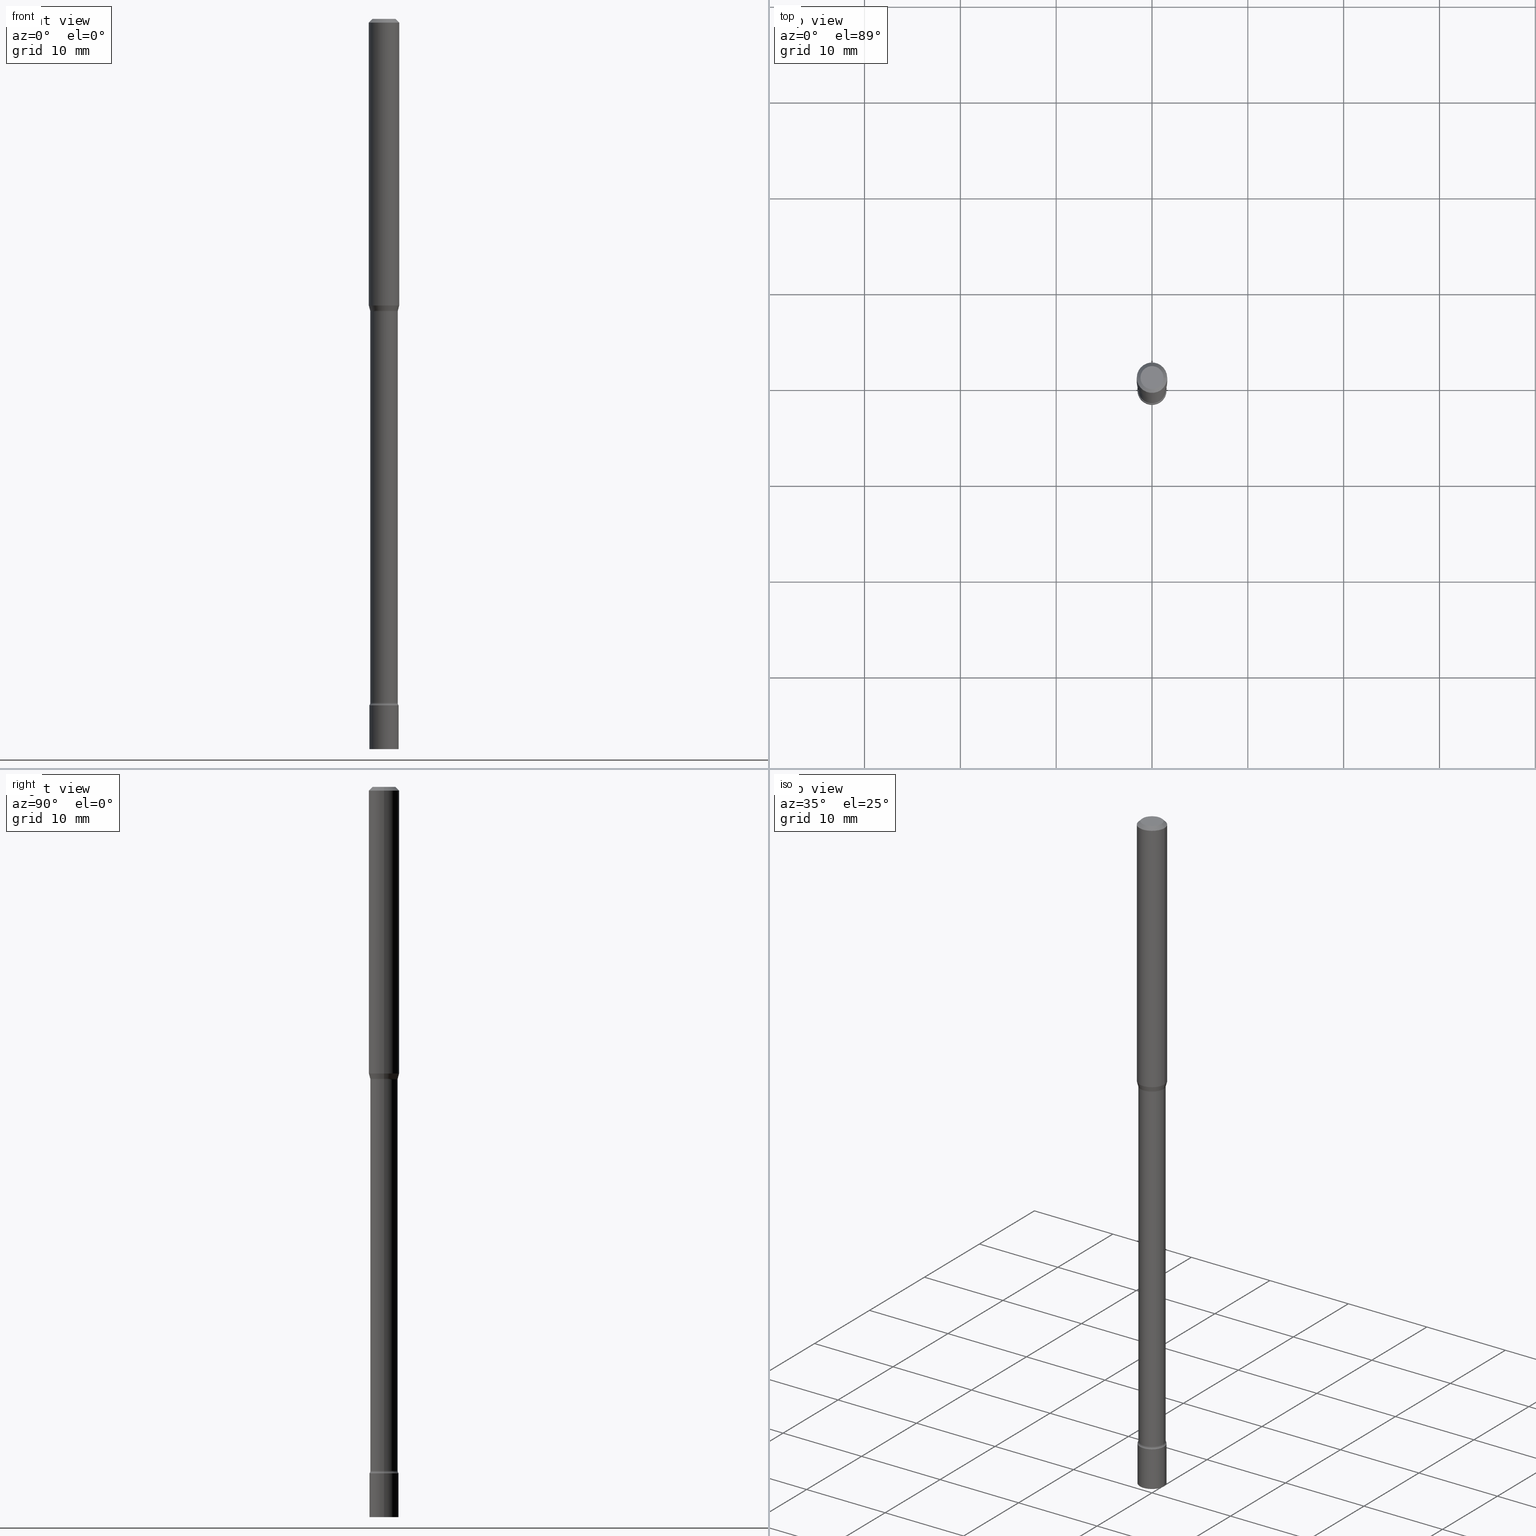
[diagram: canonical four-view strip — front | top / right | iso, engineering-drawing reading convention]
A machine part, canonical four-view strip (front | top / right | iso — engineering-drawing reading convention). The complete STEP part file that produces these views, byte-faithful:
ISO-10303-21;
HEADER;
FILE_DESCRIPTION (( 'STEP AP203' ),
    '1' );
FILE_NAME ('09778.STEP',
    '2024-03-09T02:01:24',
    ( '' ),
    ( '' ),
    'SwSTEP 2.0',
    'SolidWorks 2023',
    '' );
FILE_SCHEMA (( 'CONFIG_CONTROL_DESIGN' ));
ENDSEC;

DATA;
#1 = ORIENTED_EDGE ( 'NONE', *, *, #495, .F. ) ;
#2 = DIRECTION ( 'NONE',  ( 1.000000000000000000, -6.982962677686267499E-15, 4.876176775795935793E-29 ) ) ;
#3 = DIRECTION ( 'NONE',  ( -2.445468806185136597E-29, 3.491481338843145583E-15, 1.000000000000000000 ) ) ;
#4 = CARTESIAN_POINT ( 'NONE',  ( -0.05999999999999999084, -9.419651734081610913E-15, -2.819999999999999840 ) ) ;
#5 = FACE_OUTER_BOUND ( 'NONE', #198, .T. ) ;
#6 = DIRECTION ( 'NONE',  ( 1.000000000000000000, -6.982962677686264344E-15, 4.883557194083112901E-29 ) ) ;
#7 = APPROVAL ( #304, 'UNSPECIFIED' ) ;
#8 = AXIS2_PLACEMENT_3D ( 'NONE', #472, #271, #428 ) ;
#9 = CC_DESIGN_SECURITY_CLASSIFICATION ( #457, ( #184 ) ) ;
#10 = DIRECTION ( 'NONE',  ( -6.982962677686266711E-15, -1.000000000000000000, 3.491481338843145583E-15 ) ) ;
#11 = DIRECTION ( 'NONE',  ( 1.000000000000000000, -6.982962677686262766E-15, 0.000000000000000000 ) ) ;
#12 = EDGE_LOOP ( 'NONE', ( #476, #479, #59, #359 ) ) ;
#13 = EDGE_CURVE ( 'NONE', #282, #393, #455, .T. ) ;
#14 = LINE ( 'NONE', #377, #93 ) ;
#15 = PERSON_AND_ORGANIZATION ( #330, #85 ) ;
#16 = EDGE_LOOP ( 'NONE', ( #324, #125, #446, #500 ) ) ;
#17 = CARTESIAN_POINT ( 'NONE',  ( 4.189777606612493075E-16, 0.05999999999998952699, -3.000000000000000444 ) ) ;
#18 = AXIS2_PLACEMENT_3D ( 'NONE', #200, #483, #110 ) ;
#19 = ORIENTED_EDGE ( 'NONE', *, *, #138, .T. ) ;
#20 = FACE_OUTER_BOUND ( 'NONE', #435, .T. ) ;
#21 = TOROIDAL_SURFACE ( 'NONE', #434, 0.07139999999999999125, 0.01499999999999998904 ) ;
#22 = CARTESIAN_POINT ( 'NONE',  ( 2.878890223040817361E-29, -4.110292253535303386E-15, -1.177234490073830075 ) ) ;
#23 = EDGE_CURVE ( 'NONE', #214, #250, #239, .T. ) ;
#24 = DIRECTION ( 'NONE',  ( 0.7071067811865475727, -7.319954787623256045E-15, -0.7071067811865474617 ) ) ;
#25 = EDGE_CURVE ( 'NONE', #317, #389, #207, .T. ) ;
#26 = AXIS2_PLACEMENT_3D ( 'NONE', #395, #206, #474 ) ;
#27 = ORIENTED_EDGE ( 'NONE', *, *, #181, .F. ) ;
#28 = DIRECTION ( 'NONE',  ( -2.445468806185136597E-29, 3.491481338843145583E-15, 1.000000000000000000 ) ) ;
#29 = EDGE_CURVE ( 'NONE', #197, #505, #503, .T. ) ;
#30 = ORIENTED_EDGE ( 'NONE', *, *, #288, .T. ) ;
#31 = CARTESIAN_POINT ( 'NONE',  ( 0.04749999999999999362, -4.035134999187579609E-16, -2.891391092786643933E-17 ) ) ;
#32 = CYLINDRICAL_SURFACE ( 'NONE', #92, 0.05999999999999999778 ) ;
#33 = DIRECTION ( 'NONE',  ( -1.000000000000000000, 6.982962677686265922E-15, -4.876176775795935793E-29 ) ) ;
#34 = AXIS2_PLACEMENT_3D ( 'NONE', #309, #313, #153 ) ;
#35 = DIRECTION ( 'NONE',  ( -2.445468806185136597E-29, 3.491481338843145583E-15, 1.000000000000000000 ) ) ;
#36 = DIRECTION ( 'NONE',  ( -2.445468806185136597E-29, 3.491481338843145583E-15, 1.000000000000000000 ) ) ;
#37 = FACE_OUTER_BOUND ( 'NONE', #16, .T. ) ;
#38 = DIRECTION ( 'NONE',  ( -2.445468806185136597E-29, 3.491481338843145583E-15, 1.000000000000000000 ) ) ;
#39 = ORIENTED_EDGE ( 'NONE', *, *, #203, .T. ) ;
#40 = AXIS2_PLACEMENT_3D ( 'NONE', #177, #136, #454 ) ;
#41 = CARTESIAN_POINT ( 'NONE',  ( 0.05999999999999999778, -1.026495513619884646E-14, -2.819999999999999840 ) ) ;
#42 = EDGE_CURVE ( 'NONE', #393, #112, #366, .T. ) ;
#43 = ORIENTED_EDGE ( 'NONE', *, *, #350, .F. ) ;
#44 = CALENDAR_DATE ( 2024, 8, 3 ) ;
#45 = EDGE_CURVE ( 'NONE', #185, #317, #142, .T. ) ;
#46 = DIRECTION ( 'NONE',  ( -2.445468806185136877E-29, 3.491481338843145188E-15, 1.000000000000000000 ) ) ;
#47 = APPROVAL_ROLE ( '' ) ;
#48 = VECTOR ( 'NONE', #450, 39.37007874015748854 ) ;
#49 = APPROVAL_PERSON_ORGANIZATION ( #65, #379, #347 ) ;
#50 = AXIS2_PLACEMENT_3D ( 'NONE', #174, #238, #269 ) ;
#51 = ADVANCED_FACE ( 'NONE', ( #444 ), #21, .F. ) ;
#52 = ORIENTED_EDGE ( 'NONE', *, *, #504, .F. ) ;
#53 = FACE_OUTER_BOUND ( 'NONE', #493, .T. ) ;
#54 = DATE_AND_TIME ( #469, #468 ) ;
#55 = PRODUCT ( '09778', '09778', '', ( #105 ) ) ;
#56 = DIRECTION ( 'NONE',  ( -2.445468806185136877E-29, 3.491481338843145188E-15, 1.000000000000000000 ) ) ;
#57 = DATE_AND_TIME ( #98, #336 ) ;
#58 = CIRCLE ( 'NONE', #297, 0.01499999999999998557 ) ;
#59 = ORIENTED_EDGE ( 'NONE', *, *, #25, .T. ) ;
#60 = CARTESIAN_POINT ( 'NONE',  ( 3.668203209277712094E-31, -5.237222008264728876E-17, -0.01500000000000003067 ) ) ;
#61 = EDGE_CURVE ( 'NONE', #393, #282, #514, .T. ) ;
#62 = FACE_OUTER_BOUND ( 'NONE', #308, .T. ) ;
#63 = DIRECTION ( 'NONE',  ( 0.000000000000000000, 0.000000000000000000, 1.000000000000000000 ) ) ;
#64 = CARTESIAN_POINT ( 'NONE',  ( 0.05639999999999999181, -4.590511635211357354E-15, -1.201974787463811145 ) ) ;
#65 = PERSON_AND_ORGANIZATION ( #330, #85 ) ;
#66 = ORIENTED_EDGE ( 'NONE', *, *, #504, .T. ) ;
#67 = DIRECTION ( 'NONE',  ( -2.445468806185136597E-29, 3.491481338843145583E-15, 1.000000000000000000 ) ) ;
#68 = TOROIDAL_SURFACE ( 'NONE', #18, 0.07139999999999999125, 0.01499999999999998904 ) ;
#69 = LOCAL_TIME ( 21, 1, 24.00000000000000000, #421 ) ;
#70 = EDGE_LOOP ( 'NONE', ( #116, #290, #267, #316 ) ) ;
#71 = EDGE_CURVE ( 'NONE', #282, #243, #413, .T. ) ;
#72 = CARTESIAN_POINT ( 'NONE',  ( 2.939391848563759513E-29, -4.196672540189852739E-15, -1.201974787463811145 ) ) ;
#73 = DIRECTION ( 'NONE',  ( 2.438088387897960049E-29, -3.491481338843145188E-15, -1.000000000000000000 ) ) ;
#74 = DIRECTION ( 'NONE',  ( 1.000000000000000000, -6.982962677686261977E-15, 0.000000000000000000 ) ) ;
#75 = CONICAL_SURFACE ( 'NONE', #411, 0.05691111260566398405, 0.2617993877991494078 ) ;
#76 = EDGE_CURVE ( 'NONE', #314, #257, #398, .T. ) ;
#77 = LOCAL_TIME ( 21, 1, 24.00000000000000000, #88 ) ;
#78 = CC_DESIGN_PERSON_AND_ORGANIZATION_ASSIGNMENT ( #273, #427, ( #184 ) ) ;
#79 = DIRECTION ( 'NONE',  ( -2.445468806185136597E-29, 3.491481338843145583E-15, 1.000000000000000000 ) ) ;
#80 = ORIENTED_EDGE ( 'NONE', *, *, #459, .F. ) ;
#81 = DIRECTION ( 'NONE',  ( -2.445468806185136877E-29, 3.491481338843145188E-15, 1.000000000000000000 ) ) ;
#82 = APPLICATION_PROTOCOL_DEFINITION ( 'international standard', 'config_control_design', 1994, #294 ) ;
#83 = CARTESIAN_POINT ( 'NONE',  ( -0.06250000000000000000, -1.637243026958912814E-15, -0.01500000000000003067 ) ) ;
#84 = ORIENTED_EDGE ( 'NONE', *, *, #364, .T. ) ;
#85 = ORGANIZATION ( 'UNSPECIFIED', 'UNSPECIFIED', '' ) ;
#86 = CARTESIAN_POINT ( 'NONE',  ( 6.872381534443541527E-29, -9.811939461354673700E-15, -2.810251153914437250 ) ) ;
#87 =( LENGTH_UNIT ( ) NAMED_UNIT ( * ) SI_UNIT ( $, .METRE. ) );
#88 = COORDINATED_UNIVERSAL_TIME_OFFSET ( 5, 0, .BEHIND. ) ;
#89 = DIRECTION ( 'NONE',  ( -1.000000000000000000, 7.105427357600997914E-15, 0.000000000000000000 ) ) ;
#90 = CALENDAR_DATE ( 2024, 8, 3 ) ;
#91 = CC_DESIGN_DATE_AND_TIME_ASSIGNMENT ( #462, #351, ( #137 ) ) ;
#92 = AXIS2_PLACEMENT_3D ( 'NONE', #491, #166, #320 ) ;
#93 = VECTOR ( 'NONE', #176, 39.37007874015748143 ) ;
#94 = ORIENTED_EDGE ( 'NONE', *, *, #291, .T. ) ;
#95 = CARTESIAN_POINT ( 'NONE',  ( 0.000000000000000000, 0.000000000000000000, 0.000000000000000000 ) ) ;
#96 = VERTEX_POINT ( 'NONE', #484 ) ;
#97 = PLANE ( 'NONE',  #163 ) ;
#98 = CALENDAR_DATE ( 2024, 8, 3 ) ;
#99 = ORIENTED_EDGE ( 'NONE', *, *, #25, .F. ) ;
#100 = LINE ( 'NONE', #390, #272 ) ;
#101 = DIRECTION ( 'NONE',  ( 1.000000000000000000, 0.000000000000000000, 0.000000000000000000 ) ) ;
#102 = CIRCLE ( 'NONE', #256, 0.05999999999999999778 ) ;
#103 = ORIENTED_EDGE ( 'NONE', *, *, #291, .F. ) ;
#104 = CARTESIAN_POINT ( 'NONE',  ( 3.668203209277712094E-31, -5.237222008264728876E-17, -0.01500000000000003067 ) ) ;
#105 = MECHANICAL_CONTEXT ( 'NONE', #294, 'mechanical' ) ;
#106 = DIRECTION ( 'NONE',  ( 1.000000000000000000, -6.982962677686260400E-15, 0.000000000000000000 ) ) ;
#107 = DIRECTION ( 'NONE',  ( -2.445468806185136597E-29, 3.491481338843145583E-15, 1.000000000000000000 ) ) ;
#108 = ORIENTED_EDGE ( 'NONE', *, *, #208, .F. ) ;
#109 = DIRECTION ( 'NONE',  ( -2.445468806185136597E-29, 3.491481338843145583E-15, 1.000000000000000000 ) ) ;
#110 = DIRECTION ( 'NONE',  ( 1.000000000000000000, -6.982962677686264344E-15, 4.883557194083112901E-29 ) ) ;
#111 = CIRCLE ( 'NONE', #368, 0.06250000000000000000 ) ;
#112 = VERTEX_POINT ( 'NONE', #283 ) ;
#113 = AXIS2_PLACEMENT_3D ( 'NONE', #367, #79, #406 ) ;
#114 = EDGE_LOOP ( 'NONE', ( #382, #342, #30, #52 ) ) ;
#115 = PLANE ( 'NONE',  #211 ) ;
#116 = ORIENTED_EDGE ( 'NONE', *, *, #13, .T. ) ;
#117 = DIRECTION ( 'NONE',  ( 1.000000000000000000, -6.982962677686274599E-15, 0.000000000000000000 ) ) ;
#118 = DIRECTION ( 'NONE',  ( -2.445468806185136597E-29, 3.491481338843145583E-15, 1.000000000000000000 ) ) ;
#119 = ADVANCED_FACE ( 'NONE', ( #124 ), #32, .T. ) ;
#120 = DIRECTION ( 'NONE',  ( -2.445468806185136597E-29, 3.491481338843145583E-15, 1.000000000000000000 ) ) ;
#121 = VECTOR ( 'NONE', #438, 39.37007874015748143 ) ;
#122 = EDGE_CURVE ( 'NONE', #243, #463, #312, .T. ) ;
#123 = CIRCLE ( 'NONE', #195, 0.04749999999999999362 ) ;
#124 = FACE_OUTER_BOUND ( 'NONE', #440, .T. ) ;
#125 = ORIENTED_EDGE ( 'NONE', *, *, #13, .F. ) ;
#126 = ADVANCED_FACE ( 'NONE', ( #5 ), #218, .T. ) ;
#127 = DIRECTION ( 'NONE',  ( 1.000000000000000000, -6.982962677686268288E-15, 0.000000000000000000 ) ) ;
#128 = FACE_OUTER_BOUND ( 'NONE', #280, .T. ) ;
#129 = ORIENTED_EDGE ( 'NONE', *, *, #222, .F. ) ;
#130 = ORIENTED_EDGE ( 'NONE', *, *, #404, .T. ) ;
#131 = AXIS2_PLACEMENT_3D ( 'NONE', #187, #383, #234 ) ;
#132 = CC_DESIGN_APPROVAL ( #429, ( #457 ) ) ;
#133 = CIRCLE ( 'NONE', #50, 0.06250000000000000000 ) ;
#134 = DIRECTION ( 'NONE',  ( 1.000000000000000000, -6.982962677686260400E-15, 4.883557194083111219E-29 ) ) ;
#135 = DATE_TIME_ROLE ( 'classification_date' ) ;
#136 = DIRECTION ( 'NONE',  ( -2.445468806185136597E-29, 3.491481338843145583E-15, 1.000000000000000000 ) ) ;
#137 = PRODUCT_DEFINITION ( 'UNKNOWN', '', #184, #319 ) ;
#138 = EDGE_CURVE ( 'NONE', #230, #389, #133, .T. ) ;
#139 = AXIS2_PLACEMENT_3D ( 'NONE', #104, #431, #311 ) ;
#140 = PERSON_AND_ORGANIZATION_ROLE ( 'creator' ) ;
#141 = ORIENTED_EDGE ( 'NONE', *, *, #459, .T. ) ;
#142 = CIRCLE ( 'NONE', #346, 0.06250000000000000000 ) ;
#143 = CARTESIAN_POINT ( 'NONE',  ( 0.06250000000000000000, -4.546727420890695056E-15, -1.177234490073830075 ) ) ;
#144 = ORIENTED_EDGE ( 'NONE', *, *, #497, .T. ) ;
#145 = CARTESIAN_POINT ( 'NONE',  ( -0.05640000000000020691, -9.415422546233793245E-15, -2.810251153914437250 ) ) ;
#146 = DIRECTION ( 'NONE',  ( -2.445468806185136597E-29, 3.491481338843145583E-15, 1.000000000000000000 ) ) ;
#147 = CALENDAR_DATE ( 2024, 8, 3 ) ;
#148 = AXIS2_PLACEMENT_3D ( 'NONE', #433, #67, #2 ) ;
#149 = CARTESIAN_POINT ( 'NONE',  ( 0.000000000000000000, 0.000000000000000000, 0.000000000000000000 ) ) ;
#150 = AXIS2_PLACEMENT_3D ( 'NONE', #246, #204, #365 ) ;
#151 = CARTESIAN_POINT ( 'NONE',  ( 2.929897840045086771E-29, -4.183117612198162941E-15, -1.198092501787273223 ) ) ;
#152 = ORIENTED_EDGE ( 'NONE', *, *, #61, .F. ) ;
#153 = DIRECTION ( 'NONE',  ( 1.000000000000000000, -6.982962677686268288E-15, 0.000000000000000000 ) ) ;
#154 = ORIENTED_EDGE ( 'NONE', *, *, #181, .T. ) ;
#155 = DIRECTION ( 'NONE',  ( -2.445468806185136597E-29, 3.491481338843145583E-15, 1.000000000000000000 ) ) ;
#156 = AXIS2_PLACEMENT_3D ( 'NONE', #72, #155, #74 ) ;
#157 = EDGE_CURVE ( 'NONE', #505, #197, #123, .T. ) ;
#158 = DIRECTION ( 'NONE',  ( -6.982962677686266711E-15, -1.000000000000000000, 3.491481338843145583E-15 ) ) ;
#159 = CARTESIAN_POINT ( 'NONE',  ( -0.06250000000000000000, 4.440892098500626162E-16, -3.074334431409316114E-30 ) ) ;
#160 = ORIENTED_EDGE ( 'NONE', *, *, #188, .F. ) ;
#161 = MANIFOLD_SOLID_BREP ( 'Body-Move/Copy2[1]', #337 ) ;
#162 = CARTESIAN_POINT ( 'NONE',  ( 2.878890223040817361E-29, -4.110292253535303386E-15, -1.177234490073830075 ) ) ;
#163 = AXIS2_PLACEMENT_3D ( 'NONE', #315, #354, #343 ) ;
#164 = ORIENTED_EDGE ( 'NONE', *, *, #310, .T. ) ;
#165 = AXIS2_PLACEMENT_3D ( 'NONE', #216, #38, #134 ) ;
#166 = DIRECTION ( 'NONE',  ( -2.445468806185136597E-29, 3.491481338843145583E-15, 1.000000000000000000 ) ) ;
#167 = ADVANCED_FACE ( 'NONE', ( #62 ), #202, .T. ) ;
#168 = CARTESIAN_POINT ( 'NONE',  ( 0.06250000000000000000, -4.364351673553916694E-16, 3.047610484872459871E-30 ) ) ;
#169 = ORIENTED_EDGE ( 'NONE', *, *, #29, .F. ) ;
#170 = PRODUCT_DEFINITION_SHAPE ( 'NONE', 'NONE',  #137 ) ;
#171 = COORDINATED_UNIVERSAL_TIME_OFFSET ( 5, 0, .BEHIND. ) ;
#172 = APPROVAL_DATE_TIME ( #303, #429 ) ;
#173 = VECTOR ( 'NONE', #412, 39.37007874015748143 ) ;
#174 = CARTESIAN_POINT ( 'NONE',  ( 3.668203209277712094E-31, -5.237222008264728876E-17, -0.01500000000000003067 ) ) ;
#175 = ADVANCED_FACE ( 'NONE', ( #37 ), #486, .F. ) ;
#176 = DIRECTION ( 'NONE',  ( -0.7071067811865475727, 2.468850131082257455E-15, -0.7071067811865474617 ) ) ;
#177 = CARTESIAN_POINT ( 'NONE',  ( 0.000000000000000000, 0.000000000000000000, 0.000000000000000000 ) ) ;
#178 = PERSON_AND_ORGANIZATION ( #330, #85 ) ;
#179 = EDGE_LOOP ( 'NONE', ( #293, #103 ) ) ;
#180 = CARTESIAN_POINT ( 'NONE',  ( 0.05640000000000009589, -3.938390950215061442E-16, 2.750163701548912549E-30 ) ) ;
#181 = EDGE_CURVE ( 'NONE', #385, #112, #58, .T. ) ;
#182 = APPLICATION_CONTEXT ( 'configuration controlled 3d designs of mechanical parts and assemblies' ) ;
#183 = CIRCLE ( 'NONE', #494, 0.05999999999999999778 ) ;
#184 = PRODUCT_DEFINITION_FORMATION_WITH_SPECIFIED_SOURCE ( 'ANY', '', #55, .NOT_KNOWN. ) ;
#185 = VERTEX_POINT ( 'NONE', #492 ) ;
#186 = AXIS2_PLACEMENT_3D ( 'NONE', #285, #158, #253 ) ;
#187 = CARTESIAN_POINT ( 'NONE',  ( 6.896222033442085337E-29, -9.845977375537671403E-15, -2.819999999999999840 ) ) ;
#188 = EDGE_CURVE ( 'NONE', #314, #385, #210, .T. ) ;
#189 = PERSON_AND_ORGANIZATION_ROLE ( 'design_owner' ) ;
#190 = FACE_OUTER_BOUND ( 'NONE', #358, .T. ) ;
#191 = DIRECTION ( 'NONE',  ( -1.000000000000000000, 6.982962677686265922E-15, -4.876176775795935793E-29 ) ) ;
#192 = CONICAL_SURFACE ( 'NONE', #139, 0.06250000000000000000, 0.7853981633974483900 ) ;
#193 = CC_DESIGN_PERSON_AND_ORGANIZATION_ASSIGNMENT ( #381, #140, ( #137 ) ) ;
#194 = DIRECTION ( 'NONE',  ( 2.438088387897960049E-29, -3.491481338843145188E-15, -1.000000000000000000 ) ) ;
#195 = AXIS2_PLACEMENT_3D ( 'NONE', #430, #107, #424 ) ;
#196 = DIRECTION ( 'NONE',  ( -2.445468806185136597E-29, 3.491481338843145583E-15, 1.000000000000000000 ) ) ;
#197 = VERTEX_POINT ( 'NONE', #369 ) ;
#198 = EDGE_LOOP ( 'NONE', ( #425, #144, #289, #99 ) ) ;
#199 = CYLINDRICAL_SURFACE ( 'NONE', #148, 0.05640000000000009589 ) ;
#200 = CARTESIAN_POINT ( 'NONE',  ( 2.939391848563759513E-29, -4.196672540189852739E-15, -1.201974787463811145 ) ) ;
#201 = TOROIDAL_SURFACE ( 'NONE', #26, 0.07140000000000019942, 0.01499999999999998383 ) ;
#202 = CONICAL_SURFACE ( 'NONE', #264, 0.05691111260566398405, 0.2617993877991494078 ) ;
#203 = EDGE_CURVE ( 'NONE', #197, #230, #14, .T. ) ;
#204 = DIRECTION ( 'NONE',  ( -2.445468806185136597E-29, 3.491481338843145583E-15, 1.000000000000000000 ) ) ;
#205 = CARTESIAN_POINT ( 'NONE',  ( 7.070806723891919892E-46, -1.009523804376275404E-31, -2.891391092786900929E-17 ) ) ;
#206 = DIRECTION ( 'NONE',  ( -2.445468806185136597E-29, 3.491481338843145583E-15, 1.000000000000000000 ) ) ;
#207 = LINE ( 'NONE', #168, #173 ) ;
#208 = EDGE_CURVE ( 'NONE', #371, #250, #496, .T. ) ;
#209 = CARTESIAN_POINT ( 'NONE',  ( -0.07139999999999999125, -3.689345026857141071E-15, -1.201974787463811145 ) ) ;
#210 = CIRCLE ( 'NONE', #452, 0.05691111260566398405 ) ;
#211 = AXIS2_PLACEMENT_3D ( 'NONE', #407, #73, #33 ) ;
#212 = ORIENTED_EDGE ( 'NONE', *, *, #203, .F. ) ;
#213 = FACE_OUTER_BOUND ( 'NONE', #179, .T. ) ;
#214 = VERTEX_POINT ( 'NONE', #489 ) ;
#215 = DIRECTION ( 'NONE',  ( -2.445468806185136597E-29, 3.491481338843145583E-15, 1.000000000000000000 ) ) ;
#216 = CARTESIAN_POINT ( 'NONE',  ( 6.872381534443541527E-29, -9.811939461354673700E-15, -2.810251153914437250 ) ) ;
#217 = ADVANCED_FACE ( 'NONE', ( #128 ), #292, .T. ) ;
#218 = CYLINDRICAL_SURFACE ( 'NONE', #287, 0.06250000000000000000 ) ;
#219 = DIRECTION ( 'NONE',  ( -2.445468806185136597E-29, 3.491481338843145583E-15, 1.000000000000000000 ) ) ;
#220 = AXIS2_PLACEMENT_3D ( 'NONE', #445, #326, #485 ) ;
#221 = AXIS2_PLACEMENT_3D ( 'NONE', #448, #329, #127 ) ;
#222 = EDGE_CURVE ( 'NONE', #385, #185, #262, .T. ) ;
#223 = ORIENTED_EDGE ( 'NONE', *, *, #76, .F. ) ;
#224 = DIRECTION ( 'NONE',  ( -2.445468806185136597E-29, 3.491481338843145583E-15, 1.000000000000000000 ) ) ;
#225 = CARTESIAN_POINT ( 'NONE',  ( 0.000000000000000000, 0.000000000000000000, 0.000000000000000000 ) ) ;
#226 = ORIENTED_EDGE ( 'NONE', *, *, #45, .F. ) ;
#227 = FACE_OUTER_BOUND ( 'NONE', #12, .T. ) ;
#228 = AXIS2_PLACEMENT_3D ( 'NONE', #441, #196, #281 ) ;
#229 = APPROVAL_DATE_TIME ( #57, #7 ) ;
#230 = VERTEX_POINT ( 'NONE', #83 ) ;
#231 = DIRECTION ( 'NONE',  ( -2.445468806185136597E-29, 3.491481338843145583E-15, 1.000000000000000000 ) ) ;
#232 = DIRECTION ( 'NONE',  ( -2.445468806185136597E-29, 3.491481338843145583E-15, 1.000000000000000000 ) ) ;
#233 = SECURITY_CLASSIFICATION_LEVEL ( 'unclassified' ) ;
#234 = DIRECTION ( 'NONE',  ( 1.000000000000000000, -6.982962677686265922E-15, 4.876176775795935793E-29 ) ) ;
#235 = CC_DESIGN_PERSON_AND_ORGANIZATION_ASSIGNMENT ( #266, #189, ( #55 ) ) ;
#236 = APPROVAL_STATUS ( 'not_yet_approved' ) ;
#237 = LINE ( 'NONE', #399, #378 ) ;
#238 = DIRECTION ( 'NONE',  ( -2.445468806185136597E-29, 3.491481338843145583E-15, 1.000000000000000000 ) ) ;
#239 = CIRCLE ( 'NONE', #221, 0.05999999999999999778 ) ;
#240 = VECTOR ( 'NONE', #481, 39.37007874015748143 ) ;
#241 = LINE ( 'NONE', #357, #121 ) ;
#242 = LOCAL_TIME ( 21, 1, 24.00000000000000000, #171 ) ;
#243 = VERTEX_POINT ( 'NONE', #255 ) ;
#244 = FACE_OUTER_BOUND ( 'NONE', #70, .T. ) ;
#245 = CARTESIAN_POINT ( 'NONE',  ( 6.896222033442085337E-29, -9.845977375537671403E-15, -2.819999999999999840 ) ) ;
#246 = CARTESIAN_POINT ( 'NONE',  ( 6.896222033442085337E-29, -9.845977375537671403E-15, -2.819999999999999840 ) ) ;
#247 = FACE_OUTER_BOUND ( 'NONE', #515, .T. ) ;
#248 = CONICAL_SURFACE ( 'NONE', #301, 0.06250000000000000000, 0.7853981633974483900 ) ;
#249 = AXIS2_PLACEMENT_3D ( 'NONE', #325, #10, #117 ) ;
#250 = VERTEX_POINT ( 'NONE', #41 ) ;
#251 = DIRECTION ( 'NONE',  ( 1.000000000000000000, -6.982962677686268288E-15, 0.000000000000000000 ) ) ;
#252 = ORIENTED_EDGE ( 'NONE', *, *, #122, .F. ) ;
#253 = DIRECTION ( 'NONE',  ( 1.000000000000000000, -6.982962677686279332E-15, 0.000000000000000000 ) ) ;
#254 = ADVANCED_FACE ( 'NONE', ( #213 ), #374, .T. ) ;
#255 = CARTESIAN_POINT ( 'NONE',  ( 0.05999999999999999084, -1.026495513619884646E-14, -2.819999999999999840 ) ) ;
#256 = AXIS2_PLACEMENT_3D ( 'NONE', #245, #118, #519 ) ;
#257 = VERTEX_POINT ( 'NONE', #64 ) ;
#258 = VECTOR ( 'NONE', #81, 39.37007874015748143 ) ;
#259 = ADVANCED_FACE ( 'NONE', ( #53 ), #97, .F. ) ;
#260 = DATE_AND_TIME ( #44, #77 ) ;
#261 = CARTESIAN_POINT ( 'NONE',  ( 2.929897840045086771E-29, -4.183117612198162941E-15, -1.198092501787273223 ) ) ;
#262 = LINE ( 'NONE', #417, #48 ) ;
#263 = CIRCLE ( 'NONE', #499, 0.06250000000000000000 ) ;
#264 = AXIS2_PLACEMENT_3D ( 'NONE', #151, #232, #391 ) ;
#265 = ORIENTED_EDGE ( 'NONE', *, *, #76, .T. ) ;
#266 = PERSON_AND_ORGANIZATION ( #330, #85 ) ;
#267 = ORIENTED_EDGE ( 'NONE', *, *, #334, .F. ) ;
#268 = DIRECTION ( 'NONE',  ( -1.000000000000000000, 6.982962677686266711E-15, 0.000000000000000000 ) ) ;
#269 = DIRECTION ( 'NONE',  ( 1.000000000000000000, -6.982962677686266711E-15, 0.000000000000000000 ) ) ;
#270 = ORIENTED_EDGE ( 'NONE', *, *, #71, .F. ) ;
#271 = DIRECTION ( 'NONE',  ( 7.105427357601001859E-15, 1.000000000000000000, -3.491481338843145583E-15 ) ) ;
#272 = VECTOR ( 'NONE', #24, 39.37007874015748143 ) ;
#273 = PERSON_AND_ORGANIZATION ( #330, #85 ) ;
#274 = UNCERTAINTY_MEASURE_WITH_UNIT (LENGTH_MEASURE( 1.000000000000000082E-05 ), #296, 'distance_accuracy_value', 'NONE');
#275 = FACE_OUTER_BOUND ( 'NONE', #348, .T. ) ;
#276 = CARTESIAN_POINT ( 'NONE',  ( -0.05691111260566398405, -3.722471439711804318E-15, -1.198092501787273223 ) ) ;
#277 = FACE_OUTER_BOUND ( 'NONE', #114, .T. ) ;
#278 = ADVANCED_FACE ( 'NONE', ( #356 ), #426, .T. ) ;
#279 = APPROVAL_PERSON_ORGANIZATION ( #178, #7, #341 ) ;
#280 = EDGE_LOOP ( 'NONE', ( #1, #94, #456, #402 ) ) ;
#281 = DIRECTION ( 'NONE',  ( 1.000000000000000000, -6.982962677686260400E-15, 0.000000000000000000 ) ) ;
#282 = VERTEX_POINT ( 'NONE', #512 ) ;
#283 = CARTESIAN_POINT ( 'NONE',  ( -0.05639999999999999181, -6.603559897803563913E-15, -1.201974787463811145 ) ) ;
#284 = CYLINDRICAL_SURFACE ( 'NONE', #513, 0.05640000000000009589 ) ;
#285 = CARTESIAN_POINT ( 'NONE',  ( 0.07140000000000019942, -1.031052299654147405E-14, -2.810251153914437250 ) ) ;
#286 =( GEOMETRIC_REPRESENTATION_CONTEXT ( 3 ) GLOBAL_UNCERTAINTY_ASSIGNED_CONTEXT ( ( #274 ) ) GLOBAL_UNIT_ASSIGNED_CONTEXT ( ( #296, #332, #453 ) ) REPRESENTATION_CONTEXT ( 'NONE', 'WORKASPACE' ) );
#287 = AXIS2_PLACEMENT_3D ( 'NONE', #225, #215, #376 ) ;
#288 = EDGE_CURVE ( 'NONE', #282, #257, #516, .T. ) ;
#289 = ORIENTED_EDGE ( 'NONE', *, *, #364, .F. ) ;
#290 = ORIENTED_EDGE ( 'NONE', *, *, #42, .T. ) ;
#291 = EDGE_CURVE ( 'NONE', #96, #371, #447, .T. ) ;
#292 = CYLINDRICAL_SURFACE ( 'NONE', #40, 0.05999999999999999778 ) ;
#293 = ORIENTED_EDGE ( 'NONE', *, *, #473, .F. ) ;
#294 = APPLICATION_CONTEXT ( 'configuration controlled 3d designs of mechanical parts and assemblies' ) ;
#295 = PERSON_AND_ORGANIZATION_ROLE ( 'classification_officer' ) ;
#296 =( CONVERSION_BASED_UNIT ( 'INCH', #373 ) LENGTH_UNIT ( ) NAMED_UNIT ( #353 ) );
#297 = AXIS2_PLACEMENT_3D ( 'NONE', #209, #380, #89 ) ;
#298 = ORIENTED_EDGE ( 'NONE', *, *, #442, .T. ) ;
#299 = DIRECTION ( 'NONE',  ( 1.000000000000000000, -6.982962677686260400E-15, 0.000000000000000000 ) ) ;
#300 = CLOSED_SHELL ( 'NONE', ( #51, #518, #416, #340, #126, #167, #370, #302, #409, #520, #259, #175, #488, #477 ) ) ;
#301 = AXIS2_PLACEMENT_3D ( 'NONE', #60, #349, #268 ) ;
#302 = ADVANCED_FACE ( 'NONE', ( #227 ), #501, .T. ) ;
#303 = DATE_AND_TIME ( #90, #242 ) ;
#304 = APPROVAL_STATUS ( 'not_yet_approved' ) ;
#305 = ORIENTED_EDGE ( 'NONE', *, *, #495, .T. ) ;
#306 = DIRECTION ( 'NONE',  ( 1.000000000000000000, -6.982962677686261977E-15, 0.000000000000000000 ) ) ;
#307 = COORDINATED_UNIVERSAL_TIME_OFFSET ( 5, 0, .BEHIND. ) ;
#308 = EDGE_LOOP ( 'NONE', ( #487, #322, #43, #443 ) ) ;
#309 = CARTESIAN_POINT ( 'NONE',  ( 7.336406418555409790E-29, -1.047444401652943635E-14, -3.000000000000000444 ) ) ;
#310 = EDGE_CURVE ( 'NONE', #393, #463, #335, .T. ) ;
#311 = DIRECTION ( 'NONE',  ( -1.000000000000000000, 6.982962677686266711E-15, 0.000000000000000000 ) ) ;
#312 = CIRCLE ( 'NONE', #150, 0.05999999999999999778 ) ;
#313 = DIRECTION ( 'NONE',  ( -2.445468806185136597E-29, 3.491481338843145583E-15, 1.000000000000000000 ) ) ;
#314 = VERTEX_POINT ( 'NONE', #352 ) ;
#315 = CARTESIAN_POINT ( 'NONE',  ( 4.189777606612449195E-16, 0.05999999999999015843, -2.819999999999999840 ) ) ;
#316 = ORIENTED_EDGE ( 'NONE', *, *, #288, .F. ) ;
#317 = VERTEX_POINT ( 'NONE', #143 ) ;
#318 = CARTESIAN_POINT ( 'NONE',  ( 0.000000000000000000, 0.000000000000000000, 0.000000000000000000 ) ) ;
#319 = DESIGN_CONTEXT ( 'detailed design', #182, 'design' ) ;
#320 = DIRECTION ( 'NONE',  ( 1.000000000000000000, -6.982962677686267499E-15, 4.876176775795936353E-29 ) ) ;
#321 = FACE_OUTER_BOUND ( 'NONE', #439, .T. ) ;
#322 = ORIENTED_EDGE ( 'NONE', *, *, #222, .T. ) ;
#323 = ADVANCED_BREP_SHAPE_REPRESENTATION ( '09778', ( #161, #511, #502 ), #286 ) ;
#324 = ORIENTED_EDGE ( 'NONE', *, *, #310, .F. ) ;
#325 = CARTESIAN_POINT ( 'NONE',  ( 0.07139999999999999125, -4.695256075376651513E-15, -1.201974787463811145 ) ) ;
#326 = DIRECTION ( 'NONE',  ( -2.445468806185136597E-29, 3.491481338843145583E-15, 1.000000000000000000 ) ) ;
#327 = CIRCLE ( 'NONE', #228, 0.05691111260566398405 ) ;
#328 = ORIENTED_EDGE ( 'NONE', *, *, #471, .F. ) ;
#329 = DIRECTION ( 'NONE',  ( -2.445468806185136597E-29, 3.491481338843145583E-15, 1.000000000000000000 ) ) ;
#330 = PERSON ( 'UNSPECIFIED', 'UNSPECIFIED', 'UNSPECIFIED', ('UNSPECIFIED'), ('UNSPECIFIED'), ('UNSPECIFIED') ) ;
#331 = ORIENTED_EDGE ( 'NONE', *, *, #29, .T. ) ;
#332 =( NAMED_UNIT ( * ) PLANE_ANGLE_UNIT ( ) SI_UNIT ( $, .RADIAN. ) );
#333 = ORIENTED_EDGE ( 'NONE', *, *, #23, .T. ) ;
#334 = EDGE_CURVE ( 'NONE', #257, #112, #387, .T. ) ;
#335 = CIRCLE ( 'NONE', #8, 0.01499999999999997689 ) ;
#336 = LOCAL_TIME ( 21, 1, 24.00000000000000000, #498 ) ;
#337 = CLOSED_SHELL ( 'NONE', ( #119, #278, #217, #254 ) ) ;
#338 = PRODUCT_RELATED_PRODUCT_CATEGORY ( 'detail', '', ( #55 ) ) ;
#339 = APPROVAL_STATUS ( 'not_yet_approved' ) ;
#340 = ADVANCED_FACE ( 'NONE', ( #461 ), #248, .T. ) ;
#341 = APPROVAL_ROLE ( '' ) ;
#342 = ORIENTED_EDGE ( 'NONE', *, *, #61, .T. ) ;
#343 = DIRECTION ( 'NONE',  ( 1.000000000000000000, -6.982962677686265922E-15, 4.876176775795935793E-29 ) ) ;
#344 = AXIS2_PLACEMENT_3D ( 'NONE', #470, #109, #306 ) ;
#345 = CC_DESIGN_APPROVAL ( #7, ( #184 ) ) ;
#346 = AXIS2_PLACEMENT_3D ( 'NONE', #162, #120, #11 ) ;
#347 = APPROVAL_ROLE ( '' ) ;
#348 = EDGE_LOOP ( 'NONE', ( #152, #164, #298, #270 ) ) ;
#349 = DIRECTION ( 'NONE',  ( 2.445468806185136597E-29, -3.491481338843145583E-15, -1.000000000000000000 ) ) ;
#350 = EDGE_CURVE ( 'NONE', #317, #185, #111, .T. ) ;
#351 = DATE_TIME_ROLE ( 'creation_date' ) ;
#352 = CARTESIAN_POINT ( 'NONE',  ( 0.05691111260566398405, -4.580525787469114392E-15, -1.198092501787273223 ) ) ;
#353 = DIMENSIONAL_EXPONENTS ( 1.000000000000000000, 0.000000000000000000, 0.000000000000000000, 0.000000000000000000, 0.000000000000000000, 0.000000000000000000, 0.000000000000000000 ) ;
#354 = DIRECTION ( 'NONE',  ( -2.438088387897960049E-29, 3.491481338843145188E-15, 1.000000000000000000 ) ) ;
#355 = VECTOR ( 'NONE', #56, 39.37007874015748143 ) ;
#356 = FACE_OUTER_BOUND ( 'NONE', #451, .T. ) ;
#357 = CARTESIAN_POINT ( 'NONE',  ( -0.05999999999999999778, 4.263256414560600957E-16, -2.951361054152943413E-30 ) ) ;
#358 = EDGE_LOOP ( 'NONE', ( #375, #169, #39, #19 ) ) ;
#359 = ORIENTED_EDGE ( 'NONE', *, *, #138, .F. ) ;
#360 = DIRECTION ( 'NONE',  ( 0.2588190451025206840, 1.565188264969626504E-15, 0.9659258262890682012 ) ) ;
#361 = APPROVAL_PERSON_ORGANIZATION ( #15, #429, #47 ) ;
#362 = DIRECTION ( 'NONE',  ( 1.000000000000000000, -6.982962677686251722E-15, 0.000000000000000000 ) ) ;
#363 = CARTESIAN_POINT ( 'NONE',  ( 6.896222033442085337E-29, -9.845977375537671403E-15, -2.819999999999999840 ) ) ;
#364 = EDGE_CURVE ( 'NONE', #389, #230, #263, .T. ) ;
#365 = DIRECTION ( 'NONE',  ( 1.000000000000000000, -6.982962677686268288E-15, 0.000000000000000000 ) ) ;
#366 = LINE ( 'NONE', #372, #258 ) ;
#367 = CARTESIAN_POINT ( 'NONE',  ( 6.872381534443541527E-29, -9.811939461354673700E-15, -2.810251153914437250 ) ) ;
#368 = AXIS2_PLACEMENT_3D ( 'NONE', #22, #464, #420 ) ;
#369 = CARTESIAN_POINT ( 'NONE',  ( -0.04749999999999999362, 3.578768372314209027E-16, -2.891391092787141902E-17 ) ) ;
#370 = ADVANCED_FACE ( 'NONE', ( #20 ), #75, .T. ) ;
#371 = VERTEX_POINT ( 'NONE', #394 ) ;
#372 = CARTESIAN_POINT ( 'NONE',  ( -0.05640000000000009589, 4.007461029686971862E-16, -2.774279390903771769E-30 ) ) ;
#373 = LENGTH_MEASURE_WITH_UNIT ( LENGTH_MEASURE( 0.02539999999999999897 ), #87 );
#374 = PLANE ( 'NONE',  #396 ) ;
#375 = ORIENTED_EDGE ( 'NONE', *, *, #404, .F. ) ;
#376 = DIRECTION ( 'NONE',  ( 1.000000000000000000, -6.982962677686266711E-15, 4.876176775795935793E-29 ) ) ;
#377 = CARTESIAN_POINT ( 'NONE',  ( -0.06250000000000000000, 3.840629472727443437E-16, -0.01500000000000003067 ) ) ;
#378 = VECTOR ( 'NONE', #360, 39.37007874015748854 ) ;
#379 = APPROVAL ( #236, 'UNSPECIFIED' ) ;
#380 = DIRECTION ( 'NONE',  ( 7.105427357601001859E-15, 1.000000000000000000, -3.491481338843145583E-15 ) ) ;
#381 = PERSON_AND_ORGANIZATION ( #330, #85 ) ;
#382 = ORIENTED_EDGE ( 'NONE', *, *, #42, .F. ) ;
#383 = DIRECTION ( 'NONE',  ( -2.438088387897960049E-29, 3.491481338843145188E-15, 1.000000000000000000 ) ) ;
#384 = CC_DESIGN_DATE_AND_TIME_ASSIGNMENT ( #260, #135, ( #457 ) ) ;
#385 = VERTEX_POINT ( 'NONE', #276 ) ;
#386 = DIRECTION ( 'NONE',  ( 1.000000000000000000, -6.982962677686266711E-15, 0.000000000000000000 ) ) ;
#387 = CIRCLE ( 'NONE', #344, 0.05639999999999999181 ) ;
#388 = APPLICATION_PROTOCOL_DEFINITION ( 'international standard', 'config_control_design', 1994, #182 ) ;
#389 = VERTEX_POINT ( 'NONE', #506 ) ;
#390 = CARTESIAN_POINT ( 'NONE',  ( 0.06250000000000000000, -4.811533449433680977E-16, -0.01500000000000003067 ) ) ;
#391 = DIRECTION ( 'NONE',  ( 1.000000000000000000, -6.982962677686260400E-15, 0.000000000000000000 ) ) ;
#392 = PERSON_AND_ORGANIZATION ( #330, #85 ) ;
#393 = VERTEX_POINT ( 'NONE', #145 ) ;
#394 = CARTESIAN_POINT ( 'NONE',  ( 0.05999999999999999778, -1.089342177719061299E-14, -3.000000000000000444 ) ) ;
#395 = CARTESIAN_POINT ( 'NONE',  ( 6.872381534443541527E-29, -9.811939461354673700E-15, -2.810251153914437250 ) ) ;
#396 = AXIS2_PLACEMENT_3D ( 'NONE', #17, #194, #191 ) ;
#397 = CC_DESIGN_APPROVAL ( #379, ( #137 ) ) ;
#398 = CIRCLE ( 'NONE', #249, 0.01499999999999998557 ) ;
#399 = CARTESIAN_POINT ( 'NONE',  ( 0.05691111260566398405, -4.580525787469114392E-15, -1.198092501787273223 ) ) ;
#400 = ORIENTED_EDGE ( 'NONE', *, *, #157, .F. ) ;
#401 = LINE ( 'NONE', #159, #240 ) ;
#402 = ORIENTED_EDGE ( 'NONE', *, *, #23, .F. ) ;
#403 = DIRECTION ( 'NONE',  ( -2.445468806185136597E-29, 3.491481338843145583E-15, 1.000000000000000000 ) ) ;
#404 = EDGE_CURVE ( 'NONE', #505, #389, #100, .T. ) ;
#405 = AXIS2_PLACEMENT_3D ( 'NONE', #149, #146, #466 ) ;
#406 = DIRECTION ( 'NONE',  ( 1.000000000000000000, -6.982962677686251722E-15, 0.000000000000000000 ) ) ;
#407 = CARTESIAN_POINT ( 'NONE',  ( 3.316907271900976096E-16, 0.04749999999999999362, -1.803023190589839165E-16 ) ) ;
#408 = AXIS2_PLACEMENT_3D ( 'NONE', #86, #35, #362 ) ;
#409 = ADVANCED_FACE ( 'NONE', ( #190 ), #192, .T. ) ;
#410 = ORIENTED_EDGE ( 'NONE', *, *, #334, .T. ) ;
#411 = AXIS2_PLACEMENT_3D ( 'NONE', #509, #224, #106 ) ;
#412 = DIRECTION ( 'NONE',  ( -2.445468806185136877E-29, 3.491481338843145188E-15, 1.000000000000000000 ) ) ;
#413 = CIRCLE ( 'NONE', #186, 0.01499999999999997689 ) ;
#414 = ORIENTED_EDGE ( 'NONE', *, *, #157, .T. ) ;
#415 = CARTESIAN_POINT ( 'NONE',  ( 0.05999999999999999778, -4.189777606611760421E-16, 2.925706065477561756E-30 ) ) ;
#416 = ADVANCED_FACE ( 'NONE', ( #275 ), #201, .F. ) ;
#417 = CARTESIAN_POINT ( 'NONE',  ( -0.05691111260566398405, -3.778739835738367078E-15, -1.198092501787273223 ) ) ;
#418 = EDGE_CURVE ( 'NONE', #314, #317, #237, .T. ) ;
#419 = ORIENTED_EDGE ( 'NONE', *, *, #473, .T. ) ;
#420 = DIRECTION ( 'NONE',  ( 1.000000000000000000, -6.982962677686262766E-15, 0.000000000000000000 ) ) ;
#421 = COORDINATED_UNIVERSAL_TIME_OFFSET ( 5, 0, .BEHIND. ) ;
#422 = EDGE_LOOP ( 'NONE', ( #328, #154, #66, #223 ) ) ;
#423 = CARTESIAN_POINT ( 'NONE',  ( 3.668203209277712094E-31, -5.237222008264728876E-17, -0.01500000000000003067 ) ) ;
#424 = DIRECTION ( 'NONE',  ( 1.000000000000000000, -6.982962677686267499E-15, 4.876681293081646444E-29 ) ) ;
#425 = ORIENTED_EDGE ( 'NONE', *, *, #350, .T. ) ;
#426 = PLANE ( 'NONE',  #131 ) ;
#427 = PERSON_AND_ORGANIZATION_ROLE ( 'design_supplier' ) ;
#428 = DIRECTION ( 'NONE',  ( -1.000000000000000000, 7.105427357601001859E-15, 0.000000000000000000 ) ) ;
#429 = APPROVAL ( #339, 'UNSPECIFIED' ) ;
#430 = CARTESIAN_POINT ( 'NONE',  ( 7.070806723891919892E-46, -1.009523804376275404E-31, -2.891391092786900929E-17 ) ) ;
#431 = DIRECTION ( 'NONE',  ( 2.445468806185136597E-29, -3.491481338843145583E-15, -1.000000000000000000 ) ) ;
#432 = CC_DESIGN_PERSON_AND_ORGANIZATION_ASSIGNMENT ( #507, #465, ( #184 ) ) ;
#433 = CARTESIAN_POINT ( 'NONE',  ( 0.000000000000000000, 0.000000000000000000, 0.000000000000000000 ) ) ;
#434 = AXIS2_PLACEMENT_3D ( 'NONE', #480, #403, #6 ) ;
#435 = EDGE_LOOP ( 'NONE', ( #129, #490, #460, #226 ) ) ;
#436 = CIRCLE ( 'NONE', #156, 0.05639999999999999181 ) ;
#437 = AXIS2_PLACEMENT_3D ( 'NONE', #205, #3, #482 ) ;
#438 = DIRECTION ( 'NONE',  ( -2.445468806185136877E-29, 3.491481338843145188E-15, 1.000000000000000000 ) ) ;
#439 = EDGE_LOOP ( 'NONE', ( #27, #160, #265, #410 ) ) ;
#440 = EDGE_LOOP ( 'NONE', ( #419, #305, #80, #108 ) ) ;
#441 = CARTESIAN_POINT ( 'NONE',  ( 2.929897840045086771E-29, -4.183117612198162941E-15, -1.198092501787273223 ) ) ;
#442 = EDGE_CURVE ( 'NONE', #463, #243, #183, .T. ) ;
#443 = ORIENTED_EDGE ( 'NONE', *, *, #418, .F. ) ;
#444 = FACE_OUTER_BOUND ( 'NONE', #422, .T. ) ;
#445 = CARTESIAN_POINT ( 'NONE',  ( 7.336406418555409790E-29, -1.047444401652943635E-14, -3.000000000000000444 ) ) ;
#446 = ORIENTED_EDGE ( 'NONE', *, *, #71, .T. ) ;
#447 = CIRCLE ( 'NONE', #34, 0.05999999999999999778 ) ;
#448 = CARTESIAN_POINT ( 'NONE',  ( 6.896222033442085337E-29, -9.845977375537671403E-15, -2.819999999999999840 ) ) ;
#449 = EDGE_LOOP ( 'NONE', ( #400, #130, #84, #212 ) ) ;
#450 = DIRECTION ( 'NONE',  ( -0.2588190451025206840, 5.211531920934545520E-15, 0.9659258262890682012 ) ) ;
#451 = EDGE_LOOP ( 'NONE', ( #141, #333 ) ) ;
#452 = AXIS2_PLACEMENT_3D ( 'NONE', #261, #219, #299 ) ;
#453 =( NAMED_UNIT ( * ) SI_UNIT ( $, .STERADIAN. ) SOLID_ANGLE_UNIT ( ) );
#454 = DIRECTION ( 'NONE',  ( 1.000000000000000000, -6.982962677686267499E-15, 4.876176775795936353E-29 ) ) ;
#455 = CIRCLE ( 'NONE', #408, 0.05640000000000020691 ) ;
#456 = ORIENTED_EDGE ( 'NONE', *, *, #208, .T. ) ;
#457 = SECURITY_CLASSIFICATION ( '', '', #233 ) ;
#458 = SHAPE_DEFINITION_REPRESENTATION ( #170, #323 ) ;
#459 = EDGE_CURVE ( 'NONE', #250, #214, #102, .T. ) ;
#460 = ORIENTED_EDGE ( 'NONE', *, *, #418, .T. ) ;
#461 = FACE_OUTER_BOUND ( 'NONE', #449, .T. ) ;
#462 = DATE_AND_TIME ( #147, #69 ) ;
#463 = VERTEX_POINT ( 'NONE', #4 ) ;
#464 = DIRECTION ( 'NONE',  ( -2.445468806185136597E-29, 3.491481338843145583E-15, 1.000000000000000000 ) ) ;
#465 = PERSON_AND_ORGANIZATION_ROLE ( 'creator' ) ;
#466 = DIRECTION ( 'NONE',  ( 1.000000000000000000, -6.982962677686266711E-15, 4.876176775795935793E-29 ) ) ;
#467 = CIRCLE ( 'NONE', #220, 0.05999999999999999778 ) ;
#468 = LOCAL_TIME ( 21, 1, 24.00000000000000000, #307 ) ;
#469 = CALENDAR_DATE ( 2024, 8, 3 ) ;
#470 = CARTESIAN_POINT ( 'NONE',  ( 2.939391848563759513E-29, -4.196672540189852739E-15, -1.201974787463811145 ) ) ;
#471 = EDGE_CURVE ( 'NONE', #385, #314, #327, .T. ) ;
#472 = CARTESIAN_POINT ( 'NONE',  ( -0.07140000000000019942, -9.304611948021959666E-15, -2.810251153914437250 ) ) ;
#473 = EDGE_CURVE ( 'NONE', #371, #96, #467, .T. ) ;
#474 = DIRECTION ( 'NONE',  ( 1.000000000000000000, -6.982962677686260400E-15, 4.883557194083111219E-29 ) ) ;
#475 = VECTOR ( 'NONE', #46, 39.37007874015748143 ) ;
#476 = ORIENTED_EDGE ( 'NONE', *, *, #497, .F. ) ;
#477 = ADVANCED_FACE ( 'NONE', ( #321 ), #68, .F. ) ;
#478 = DIRECTION ( 'NONE',  ( 1.000000000000000000, -6.982962677686267499E-15, 4.876176775795935793E-29 ) ) ;
#479 = ORIENTED_EDGE ( 'NONE', *, *, #45, .T. ) ;
#480 = CARTESIAN_POINT ( 'NONE',  ( 2.939391848563759513E-29, -4.196672540189852739E-15, -1.201974787463811145 ) ) ;
#481 = DIRECTION ( 'NONE',  ( -2.445468806185136877E-29, 3.491481338843145188E-15, 1.000000000000000000 ) ) ;
#482 = DIRECTION ( 'NONE',  ( 1.000000000000000000, -6.982962677686267499E-15, 4.876681293081646444E-29 ) ) ;
#483 = DIRECTION ( 'NONE',  ( -2.445468806185136597E-29, 3.491481338843145583E-15, 1.000000000000000000 ) ) ;
#484 = CARTESIAN_POINT ( 'NONE',  ( -0.05999999999999999778, -9.733885054577494177E-15, -3.000000000000000444 ) ) ;
#485 = DIRECTION ( 'NONE',  ( 1.000000000000000000, -6.982962677686268288E-15, 0.000000000000000000 ) ) ;
#486 = TOROIDAL_SURFACE ( 'NONE', #165, 0.07140000000000019942, 0.01499999999999998383 ) ;
#487 = ORIENTED_EDGE ( 'NONE', *, *, #188, .T. ) ;
#488 = ADVANCED_FACE ( 'NONE', ( #277 ), #199, .T. ) ;
#489 = CARTESIAN_POINT ( 'NONE',  ( -0.05999999999999999778, -9.733885054577494177E-15, -2.819999999999999840 ) ) ;
#490 = ORIENTED_EDGE ( 'NONE', *, *, #471, .T. ) ;
#491 = CARTESIAN_POINT ( 'NONE',  ( 0.000000000000000000, 0.000000000000000000, 0.000000000000000000 ) ) ;
#492 = CARTESIAN_POINT ( 'NONE',  ( -0.06250000000000000000, -3.666203043685241559E-15, -1.177234490073830075 ) ) ;
#493 = EDGE_LOOP ( 'NONE', ( #252, #508 ) ) ;
#494 = AXIS2_PLACEMENT_3D ( 'NONE', #363, #28, #251 ) ;
#495 = EDGE_CURVE ( 'NONE', #96, #214, #241, .T. ) ;
#496 = LINE ( 'NONE', #415, #475 ) ;
#497 = EDGE_CURVE ( 'NONE', #185, #230, #401, .T. ) ;
#498 = COORDINATED_UNIVERSAL_TIME_OFFSET ( 5, 0, .BEHIND. ) ;
#499 = AXIS2_PLACEMENT_3D ( 'NONE', #423, #231, #386 ) ;
#500 = ORIENTED_EDGE ( 'NONE', *, *, #122, .T. ) ;
#501 = CYLINDRICAL_SURFACE ( 'NONE', #405, 0.06250000000000000000 ) ;
#502 = AXIS2_PLACEMENT_3D ( 'NONE', #95, #63, #101 ) ;
#503 = CIRCLE ( 'NONE', #437, 0.04749999999999999362 ) ;
#504 = EDGE_CURVE ( 'NONE', #112, #257, #436, .T. ) ;
#505 = VERTEX_POINT ( 'NONE', #31 ) ;
#506 = CARTESIAN_POINT ( 'NONE',  ( 0.06250000000000000000, -4.888073874380389458E-16, -0.01500000000000003067 ) ) ;
#507 = PERSON_AND_ORGANIZATION ( #330, #85 ) ;
#508 = ORIENTED_EDGE ( 'NONE', *, *, #442, .F. ) ;
#509 = CARTESIAN_POINT ( 'NONE',  ( 2.929897840045086771E-29, -4.183117612198162941E-15, -1.198092501787273223 ) ) ;
#510 = APPROVAL_DATE_TIME ( #54, #379 ) ;
#511 = MANIFOLD_SOLID_BREP ( 'Body-Move/Copy2[2]', #300 ) ;
#512 = CARTESIAN_POINT ( 'NONE',  ( 0.05640000000000020691, -1.020577855637617911E-14, -2.810251153914437250 ) ) ;
#513 = AXIS2_PLACEMENT_3D ( 'NONE', #318, #36, #478 ) ;
#514 = CIRCLE ( 'NONE', #113, 0.05640000000000020691 ) ;
#515 = EDGE_LOOP ( 'NONE', ( #331, #414 ) ) ;
#516 = LINE ( 'NONE', #180, #355 ) ;
#517 = CC_DESIGN_PERSON_AND_ORGANIZATION_ASSIGNMENT ( #392, #295, ( #457 ) ) ;
#518 = ADVANCED_FACE ( 'NONE', ( #244 ), #284, .T. ) ;
#519 = DIRECTION ( 'NONE',  ( 1.000000000000000000, -6.982962677686268288E-15, 0.000000000000000000 ) ) ;
#520 = ADVANCED_FACE ( 'NONE', ( #247 ), #115, .F. ) ;
ENDSEC;
END-ISO-10303-21;
